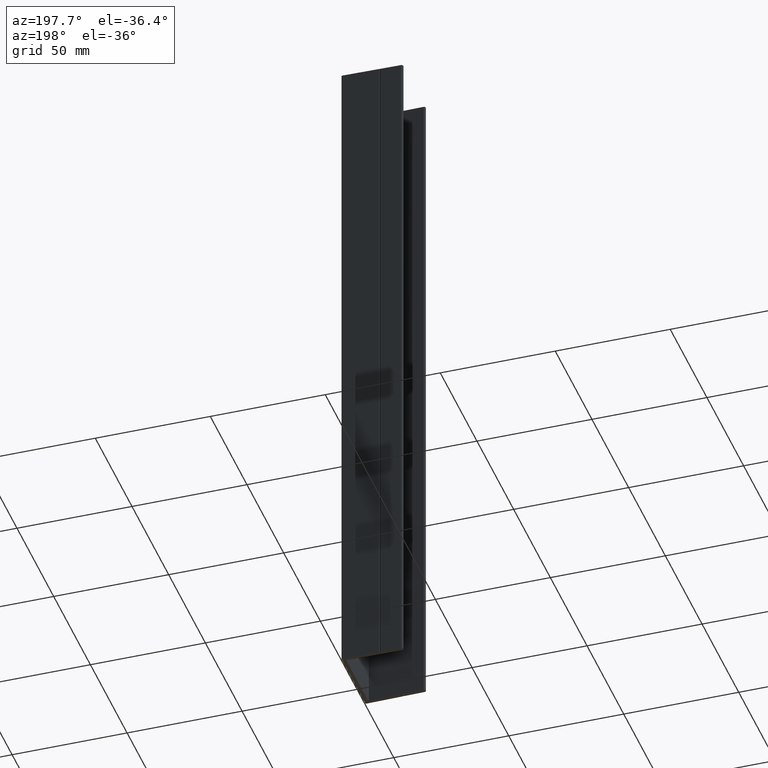
[diagram: clean part render]
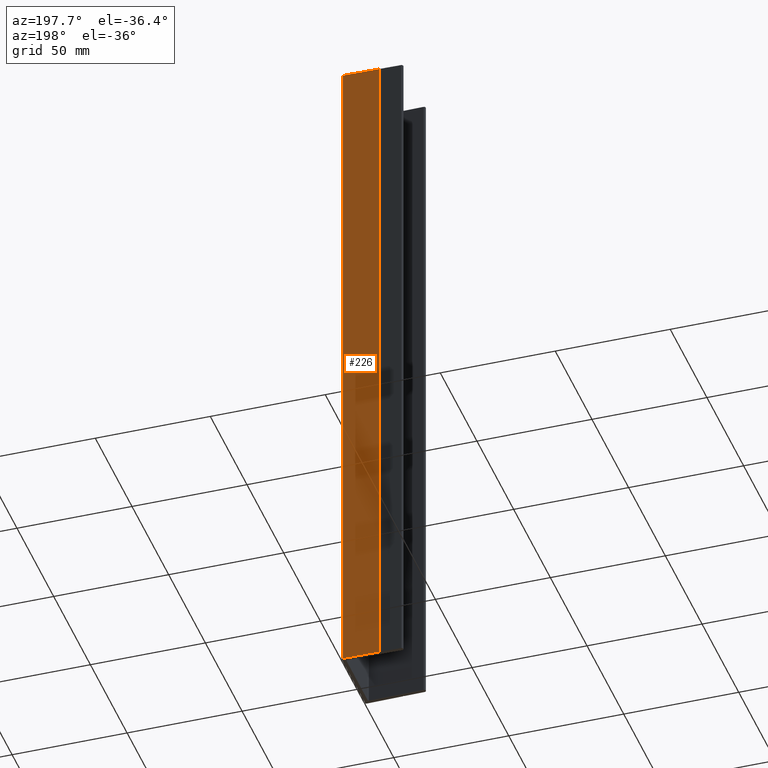
[diagram: same view with one face highlighted and labeled with its STEP entity id]
A machine part, auxiliary view. The second image highlights one B-rep face of the part: STEP entity #226.
In plain terms, the highlighted planar face has unit normal (0.016, -0.9999, 0).
Its self-contained STEP definition (entity closure, byte-faithful):
#14 = CARTESIAN_POINT ( 'NONE',  ( -14.78087924239068100, 16.26391553212179300, 150.0000000000000000 ) ) ;
#58 = DIRECTION ( 'NONE',  ( 0.9998720245707583000, 0.01599795239313701200, 0.0000000000000000000 ) ) ;
#69 = ORIENTED_EDGE ( 'NONE', *, *, #844, .F. ) ;
#89 = CARTESIAN_POINT ( 'NONE',  ( -14.78087924239068100, 16.26391553212179300, -150.0009999999999800 ) ) ;
#99 = ORIENTED_EDGE ( 'NONE', *, *, #842, .T. ) ;
#105 = DIRECTION ( 'NONE',  ( -0.9998720245707581900, -0.01599795239313700800, 0.0000000000000000000 ) ) ;
#125 = VECTOR ( 'NONE', #443, 1000.000000000000000 ) ;
#138 = LINE ( 'NONE', #735, #448 ) ;
#179 = PLANE ( 'NONE',  #763 ) ;
#200 = VERTEX_POINT ( 'NONE', #618 ) ;
#226 = ADVANCED_FACE ( 'NONE', ( #436 ), #179, .F. ) ;
#249 = DIRECTION ( 'NONE',  ( -0.0000000000000000000, -0.0000000000000000000, 1.000000000000000000 ) ) ;
#295 = VECTOR ( 'NONE', #105, 1000.000000000000100 ) ;
#302 = LINE ( 'NONE', #89, #870 ) ;
#348 = EDGE_LOOP ( 'NONE', ( #492, #99, #69, #444 ) ) ;
#354 = CARTESIAN_POINT ( 'NONE',  ( 1.092001023803434100, 16.51788161638097600, 150.0000000000000000 ) ) ;
#372 = CARTESIAN_POINT ( 'NONE',  ( 1.092001023803434100, 16.51788161638097600, 150.0000000000000000 ) ) ;
#397 = CARTESIAN_POINT ( 'NONE',  ( 1.092001023803434100, 16.51788161638097600, 150.0000000000000000 ) ) ;
#436 = FACE_OUTER_BOUND ( 'NONE', #348, .T. ) ;
#443 = DIRECTION ( 'NONE',  ( -0.0000000000000000000, -0.0000000000000000000, -1.000000000000000000 ) ) ;
#444 = ORIENTED_EDGE ( 'NONE', *, *, #845, .T. ) ;
#448 = VECTOR ( 'NONE', #822, 1000.000000000000100 ) ;
#460 = VERTEX_POINT ( 'NONE', #397 ) ;
#486 = CARTESIAN_POINT ( 'NONE',  ( 1.092001023803434100, 16.51788161638097600, -150.0000000000000000 ) ) ;
#487 = DIRECTION ( 'NONE',  ( 0.01599795239313701200, -0.9998720245707583000, 0.0000000000000000000 ) ) ;
#492 = ORIENTED_EDGE ( 'NONE', *, *, #790, .T. ) ;
#611 = VERTEX_POINT ( 'NONE', #788 ) ;
#618 = CARTESIAN_POINT ( 'NONE',  ( -14.78087924239068100, 16.26391553212179300, -150.0000000000000000 ) ) ;
#622 = LINE ( 'NONE', #372, #125 ) ;
#665 = LINE ( 'NONE', #486, #295 ) ;
#735 = CARTESIAN_POINT ( 'NONE',  ( 1.092001023803434100, 16.51788161638097600, 150.0000000000000000 ) ) ;
#760 = VERTEX_POINT ( 'NONE', #14 ) ;
#763 = AXIS2_PLACEMENT_3D ( 'NONE', #354, #487, #58 ) ;
#788 = CARTESIAN_POINT ( 'NONE',  ( 1.092001023803434100, 16.51788161638097600, -150.0000000000000000 ) ) ;
#790 = EDGE_CURVE ( 'NONE', #611, #200, #665, .T. ) ;
#822 = DIRECTION ( 'NONE',  ( -0.9998720245707581900, -0.01599795239313700800, 0.0000000000000000000 ) ) ;
#842 = EDGE_CURVE ( 'NONE', #200, #760, #302, .T. ) ;
#844 = EDGE_CURVE ( 'NONE', #460, #760, #138, .T. ) ;
#845 = EDGE_CURVE ( 'NONE', #460, #611, #622, .T. ) ;
#870 = VECTOR ( 'NONE', #249, 1000.000000000000000 ) ;